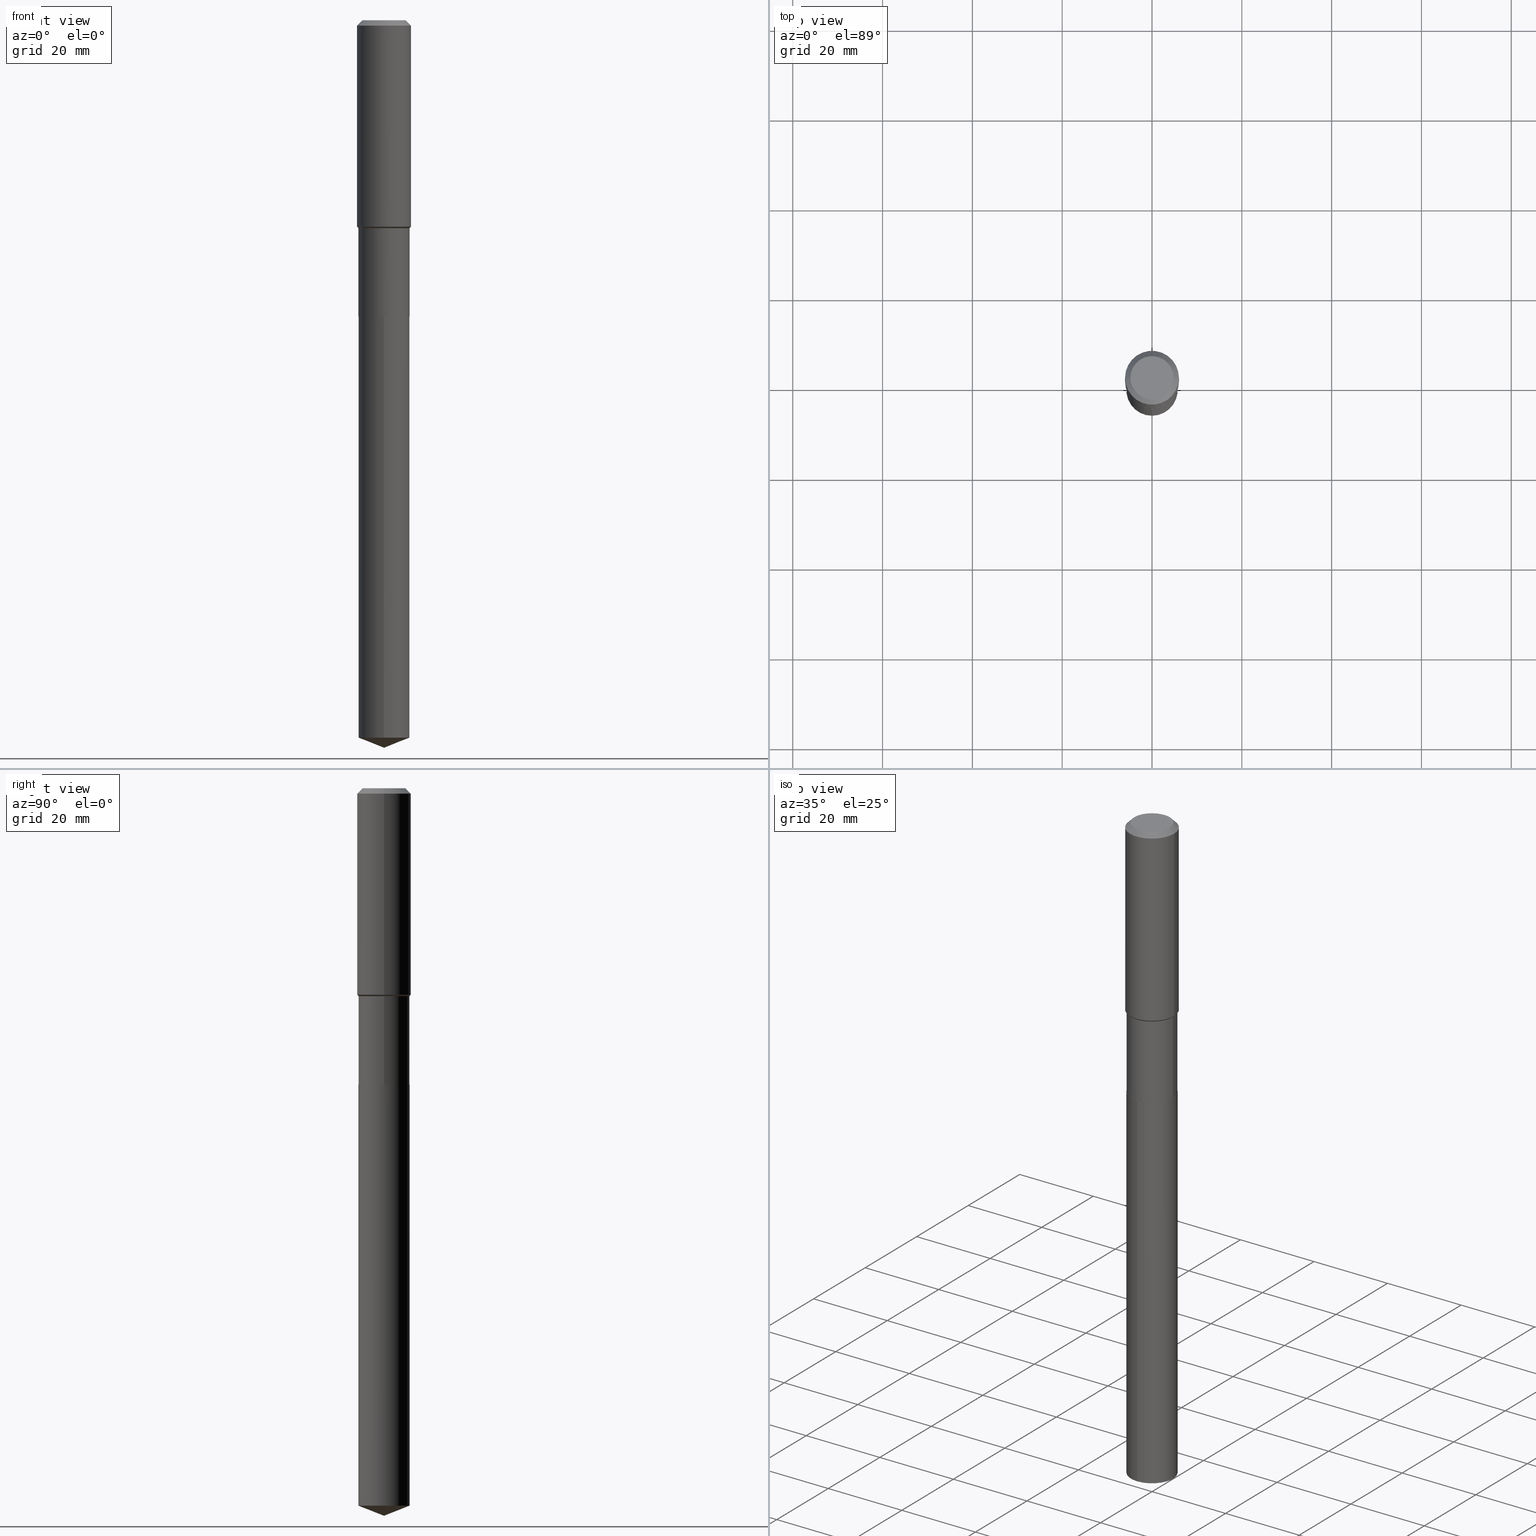
[diagram: canonical four-view strip — front | top / right | iso, engineering-drawing reading convention]
A machine part, canonical four-view strip (front | top / right | iso — engineering-drawing reading convention). The complete STEP part file that produces these views, byte-faithful:
ISO-10303-21;
HEADER;
FILE_DESCRIPTION (( 'STEP AP203' ),
    '1' );
FILE_NAME ('66690.STEP',
    '2024-04-25T03:47:43',
    ( '' ),
    ( '' ),
    'SwSTEP 2.0',
    'SolidWorks 2023',
    '' );
FILE_SCHEMA (( 'CONFIG_CONTROL_DESIGN' ));
ENDSEC;

DATA;
#1 = EDGE_LOOP ( 'NONE', ( #70, #73, #159, #308 ) ) ;
#2 = DIRECTION ( 'NONE',  ( 1.000000000000000000, -6.982962677686266711E-15, 4.876185090822587894E-29 ) ) ;
#3 = ORIENTED_EDGE ( 'NONE', *, *, #23, .F. ) ;
#4 = ORIENTED_EDGE ( 'NONE', *, *, #370, .T. ) ;
#5 = AXIS2_PLACEMENT_3D ( 'NONE', #245, #356, #468 ) ;
#6 = CARTESIAN_POINT ( 'NONE',  ( 6.354306145991461998E-29, -9.072265110850035778E-15, -2.598400000000001597 ) ) ;
#7 = CIRCLE ( 'NONE', #482, 0.2361999999999999933 ) ;
#8 = ORIENTED_EDGE ( 'NONE', *, *, #50, .T. ) ;
#9 = ADVANCED_FACE ( 'NONE', ( #47 ), #354, .F. ) ;
#10 = CARTESIAN_POINT ( 'NONE',  ( 0.000000000000000000, 0.000000000000000000, 0.000000000000000000 ) ) ;
#11 = VERTEX_POINT ( 'NONE', #417 ) ;
#12 = VERTEX_POINT ( 'NONE', #77 ) ;
#13 = DIRECTION ( 'NONE',  ( -2.445468806185136597E-29, 3.491481338843145583E-15, 1.000000000000000000 ) ) ;
#14 = PRODUCT_DEFINITION ( 'UNKNOWN', '', #75, #82 ) ;
#15 = FACE_OUTER_BOUND ( 'NONE', #261, .T. ) ;
#16 = CARTESIAN_POINT ( 'NONE',  ( 1.594457899045728238E-15, 0.2243999999999909123, -2.598400000000001597 ) ) ;
#17 = EDGE_CURVE ( 'NONE', #340, #80, #435, .T. ) ;
#18 = DIRECTION ( 'NONE',  ( 1.000000000000000000, -6.982962677686265922E-15, 0.000000000000000000 ) ) ;
#19 = CARTESIAN_POINT ( 'NONE',  ( 1.559683025661503327E-28, -2.226849818518576806E-14, -6.377900000000001235 ) ) ;
#20 = CARTESIAN_POINT ( 'NONE',  ( 6.354306145991461998E-29, -9.072265110850035778E-15, -2.598400000000001597 ) ) ;
#21 = FACE_OUTER_BOUND ( 'NONE', #218, .T. ) ;
#22 = DIRECTION ( 'NONE',  ( 1.000000000000000000, -6.982962677686266711E-15, 4.876185090822587894E-29 ) ) ;
#23 = EDGE_CURVE ( 'NONE', #12, #447, #277, .T. ) ;
#24 = DIRECTION ( 'NONE',  ( 1.000000000000000000, -6.982962677686266711E-15, 4.876176775795936353E-29 ) ) ;
#25 = CIRCLE ( 'NONE', #426, 0.2244000000000000161 ) ;
#26 = AXIS2_PLACEMENT_3D ( 'NONE', #225, #72, #32 ) ;
#27 = DIRECTION ( 'NONE',  ( -2.445449169258695004E-29, 3.491509460039474509E-15, 1.000000000000000000 ) ) ;
#28 = DIRECTION ( 'NONE',  ( -2.445468806185136597E-29, 3.491481338843145583E-15, 1.000000000000000000 ) ) ;
#29 = ORIENTED_EDGE ( 'NONE', *, *, #443, .T. ) ;
#30 = PERSON_AND_ORGANIZATION_ROLE ( 'design_owner' ) ;
#31 = EDGE_LOOP ( 'NONE', ( #199, #179, #349, #200 ) ) ;
#32 = DIRECTION ( 'NONE',  ( 1.000000000000000000, 0.000000000000000000, 0.000000000000000000 ) ) ;
#33 = CIRCLE ( 'NONE', #485, 0.1889600000000000168 ) ;
#34 =( NAMED_UNIT ( * ) PLANE_ANGLE_UNIT ( ) SI_UNIT ( $, .RADIAN. ) );
#35 = CALENDAR_DATE ( 2024, 24, 4 ) ;
#36 = ORIENTED_EDGE ( 'NONE', *, *, #423, .F. ) ;
#37 = AXIS2_PLACEMENT_3D ( 'NONE', #393, #208, #206 ) ;
#38 = APPLICATION_PROTOCOL_DEFINITION ( 'international standard', 'config_control_design', 1994, #306 ) ;
#39 = CARTESIAN_POINT ( 'NONE',  ( 1.155239464041865331E-30, -1.649375784469511612E-16, -0.04724000000000027483 ) ) ;
#40 = DIRECTION ( 'NONE',  ( 1.000000000000000000, -6.982962677686266711E-15, 0.000000000000000000 ) ) ;
#41 = CC_DESIGN_PERSON_AND_ORGANIZATION_ASSIGNMENT ( #149, #107, ( #14 ) ) ;
#42 = ORIENTED_EDGE ( 'NONE', *, *, #433, .F. ) ;
#43 = CIRCLE ( 'NONE', #104, 0.2238999999999999879 ) ;
#44 = CARTESIAN_POINT ( 'NONE',  ( 6.354306145991460877E-29, -9.072265110850034200E-15, -2.598400000000000709 ) ) ;
#45 = VERTEX_POINT ( 'NONE', #475 ) ;
#46 = DIRECTION ( 'NONE',  ( -2.445468806185136597E-29, 3.491481338843145583E-15, 1.000000000000000000 ) ) ;
#47 = FACE_OUTER_BOUND ( 'NONE', #450, .T. ) ;
#48 = CARTESIAN_POINT ( 'NONE',  ( 1.594457899045818168E-15, 0.2243999999999780059, -6.289506489272009837 ) ) ;
#49 = CARTESIAN_POINT ( 'NONE',  ( 0.1889600000000000168, -1.540873453589747738E-15, 3.855188123725863225E-18 ) ) ;
#50 = EDGE_CURVE ( 'NONE', #148, #191, #94, .T. ) ;
#51 = PLANE ( 'NONE',  #93 ) ;
#52 = VECTOR ( 'NONE', #351, 39.37007874015748854 ) ;
#53 = CIRCLE ( 'NONE', #195, 0.2243999999999999051 ) ;
#54 = CARTESIAN_POINT ( 'NONE',  ( 4.456622352391794524E-29, -6.362875591907751010E-15, -1.822400000000000686 ) ) ;
#55 = AXIS2_PLACEMENT_3D ( 'NONE', #10, #239, #231 ) ;
#56 = LINE ( 'NONE', #130, #62 ) ;
#57 = DIRECTION ( 'NONE',  ( -6.982962677686265133E-15, -1.000000000000000000, 2.434802133390608632E-15 ) ) ;
#58 = DIRECTION ( 'NONE',  ( -6.982962677686265133E-15, -1.000000000000000000, 4.869604266781217263E-15 ) ) ;
#59 = EDGE_CURVE ( 'NONE', #11, #340, #124, .T. ) ;
#60 = DIRECTION ( 'NONE',  ( 0.7071067811865526798, -2.468850131082310309E-15, 0.7071067811865424657 ) ) ;
#61 = DIRECTION ( 'NONE',  ( -2.445468806185136597E-29, 3.491481338843145583E-15, 1.000000000000000000 ) ) ;
#62 = VECTOR ( 'NONE', #282, 39.37007874015748143 ) ;
#63 = ORIENTED_EDGE ( 'NONE', *, *, #352, .F. ) ;
#64 = COORDINATED_UNIVERSAL_TIME_OFFSET ( 5, 0, .BEHIND. ) ;
#65 = ORIENTED_EDGE ( 'NONE', *, *, #50, .F. ) ;
#66 = COORDINATED_UNIVERSAL_TIME_OFFSET ( 5, 0, .BEHIND. ) ;
#67 = ORIENTED_EDGE ( 'NONE', *, *, #121, .F. ) ;
#68 = SHAPE_DEFINITION_REPRESENTATION ( #359, #326 ) ;
#69 = CLOSED_SHELL ( 'NONE', ( #100, #205, #290, #226, #9 ) ) ;
#70 = ORIENTED_EDGE ( 'NONE', *, *, #320, .T. ) ;
#71 = COORDINATED_UNIVERSAL_TIME_OFFSET ( 5, 0, .BEHIND. ) ;
#72 = DIRECTION ( 'NONE',  ( 0.000000000000000000, 0.000000000000000000, 1.000000000000000000 ) ) ;
#73 = ORIENTED_EDGE ( 'NONE', *, *, #135, .T. ) ;
#74 = EDGE_LOOP ( 'NONE', ( #465, #300, #463, #262 ) ) ;
#75 = PRODUCT_DEFINITION_FORMATION_WITH_SPECIFIED_SOURCE ( 'ANY', '', #284, .NOT_KNOWN. ) ;
#76 = FACE_OUTER_BOUND ( 'NONE', #136, .T. ) ;
#77 = CARTESIAN_POINT ( 'NONE',  ( -0.2362000000000002153, -4.643374170244043187E-15, -1.810600000000000653 ) ) ;
#78 = ADVANCED_FACE ( 'NONE', ( #209 ), #168, .T. ) ;
#79 = DIRECTION ( 'NONE',  ( 1.000000000000000000, -6.982962677686266711E-15, 4.876176775795936353E-29 ) ) ;
#80 = VERTEX_POINT ( 'NONE', #126 ) ;
#81 = DIRECTION ( 'NONE',  ( 1.000000000000000000, -6.982962677686269077E-15, 0.000000000000000000 ) ) ;
#82 = DESIGN_CONTEXT ( 'detailed design', #306, 'design' ) ;
#83 = CLOSED_SHELL ( 'NONE', ( #410, #331, #215, #151, #78, #251, #143, #88, #303, #129, #309, #288 ) ) ;
#84 = VECTOR ( 'NONE', #480, 39.37007874015747433 ) ;
#85 = FACE_OUTER_BOUND ( 'NONE', #254, .T. ) ;
#86 = ORIENTED_EDGE ( 'NONE', *, *, #161, .T. ) ;
#87 = LINE ( 'NONE', #345, #388 ) ;
#88 = ADVANCED_FACE ( 'NONE', ( #21 ), #132, .T. ) ;
#89 = CARTESIAN_POINT ( 'NONE',  ( 0.2243999999999999051, -7.929852416780548622E-15, -1.822400000000000686 ) ) ;
#90 = CARTESIAN_POINT ( 'NONE',  ( 1.538071944382707100E-28, -2.195979833615634179E-14, -6.289506489272008949 ) ) ;
#91 = FACE_OUTER_BOUND ( 'NONE', #274, .T. ) ;
#92 = LINE ( 'NONE', #400, #445 ) ;
#93 = AXIS2_PLACEMENT_3D ( 'NONE', #398, #216, #178 ) ;
#94 = LINE ( 'NONE', #430, #367 ) ;
#95 = CARTESIAN_POINT ( 'NONE',  ( 0.2243999999999999329, -1.566976824872797810E-15, 1.094214068488607769E-29 ) ) ;
#96 = DIRECTION ( 'NONE',  ( -2.445468806185136877E-29, 3.491481338843145188E-15, 1.000000000000000000 ) ) ;
#97 = CARTESIAN_POINT ( 'NONE',  ( 4.456622352391794524E-29, -6.362875591907751010E-15, -1.822400000000000686 ) ) ;
#98 = LINE ( 'NONE', #278, #348 ) ;
#99 = AXIS2_PLACEMENT_3D ( 'NONE', #387, #167, #314 ) ;
#100 = ADVANCED_FACE ( 'NONE', ( #283 ), #440, .T. ) ;
#101 = CALENDAR_DATE ( 2024, 24, 4 ) ;
#102 = ORIENTED_EDGE ( 'NONE', *, *, #457, .T. ) ;
#103 = DATE_AND_TIME ( #224, #357 ) ;
#104 = AXIS2_PLACEMENT_3D ( 'NONE', #190, #461, #301 ) ;
#105 = AXIS2_PLACEMENT_3D ( 'NONE', #90, #27, #58 ) ;
#106 = ORIENTED_EDGE ( 'NONE', *, *, #320, .F. ) ;
#107 = PERSON_AND_ORGANIZATION_ROLE ( 'creator' ) ;
#108 = PERSON_AND_ORGANIZATION ( #487, #238 ) ;
#109 = EDGE_LOOP ( 'NONE', ( #296, #272, #299, #144 ) ) ;
#110 = VERTEX_POINT ( 'NONE', #394 ) ;
#111 = FACE_OUTER_BOUND ( 'NONE', #337, .T. ) ;
#112 = DIRECTION ( 'NONE',  ( 6.982962677686265922E-15, 1.000000000000000000, -3.491509460039474509E-15 ) ) ;
#113 = VERTEX_POINT ( 'NONE', #49 ) ;
#114 = SECURITY_CLASSIFICATION ( '', '', #333 ) ;
#115 = VECTOR ( 'NONE', #96, 39.37007874015748143 ) ;
#116 = CARTESIAN_POINT ( 'NONE',  ( 0.000000000000000000, 0.000000000000000000, 0.000000000000000000 ) ) ;
#117 = ORIENTED_EDGE ( 'NONE', *, *, #163, .F. ) ;
#118 = CARTESIAN_POINT ( 'NONE',  ( 6.353083411588368076E-29, -9.070519370180611907E-15, -2.597900000000000542 ) ) ;
#119 = ORIENTED_EDGE ( 'NONE', *, *, #188, .F. ) ;
#120 = DIRECTION ( 'NONE',  ( 2.445468806185136597E-29, -3.491481338843145583E-15, -1.000000000000000000 ) ) ;
#121 = EDGE_CURVE ( 'NONE', #257, #407, #436, .T. ) ;
#122 = AXIS2_PLACEMENT_3D ( 'NONE', #285, #244, #127 ) ;
#123 = CARTESIAN_POINT ( 'NONE',  ( -9.427742298522546243E-47, 1.346031739168365344E-32, 3.855188123715862256E-18 ) ) ;
#124 = LINE ( 'NONE', #89, #459 ) ;
#125 = DIRECTION ( 'NONE',  ( -0.7071067811865453523, 2.468850131082234184E-15, -0.7071067811865496822 ) ) ;
#126 = CARTESIAN_POINT ( 'NONE',  ( 0.2361999999999999933, -1.814313362916447440E-15, -0.04724000000000027483 ) ) ;
#127 = DIRECTION ( 'NONE',  ( -1.000000000000000000, 6.982962677686266711E-15, 0.000000000000000000 ) ) ;
#128 = DIRECTION ( 'NONE',  ( 6.611014441532066589E-15, 0.9304175679820272382, 0.3665012267242905297 ) ) ;
#129 = ADVANCED_FACE ( 'NONE', ( #281 ), #202, .F. ) ;
#130 = CARTESIAN_POINT ( 'NONE',  ( -0.2243999999999999051, -4.768417692862086670E-15, -1.822400000000000686 ) ) ;
#131 = CONICAL_SURFACE ( 'NONE', #409, 0.2238999999999999879, 0.7853981633967311859 ) ;
#132 = CYLINDRICAL_SURFACE ( 'NONE', #155, 0.2362000000000001043 ) ;
#133 = DIRECTION ( 'NONE',  ( -2.445449169258695004E-29, 3.491509460039474509E-15, 1.000000000000000000 ) ) ;
#134 = CARTESIAN_POINT ( 'NONE',  ( -0.2361999999999999933, -1.565004903412818656E-15, -0.04724000000000027483 ) ) ;
#135 = EDGE_CURVE ( 'NONE', #191, #257, #250, .T. ) ;
#136 = EDGE_LOOP ( 'NONE', ( #117, #119 ) ) ;
#137 = EDGE_CURVE ( 'NONE', #447, #80, #265, .T. ) ;
#138 = AXIS2_PLACEMENT_3D ( 'NONE', #232, #385, #40 ) ;
#139 = VERTEX_POINT ( 'NONE', #471 ) ;
#140 = PERSON_AND_ORGANIZATION ( #487, #238 ) ;
#141 = VERTEX_POINT ( 'NONE', #432 ) ;
#142 = APPROVAL_STATUS ( 'not_yet_approved' ) ;
#143 = ADVANCED_FACE ( 'NONE', ( #91 ), #259, .T. ) ;
#144 = ORIENTED_EDGE ( 'NONE', *, *, #59, .F. ) ;
#145 = PERSON_AND_ORGANIZATION ( #487, #238 ) ;
#146 = APPROVAL_PERSON_ORGANIZATION ( #108, #329, #455 ) ;
#147 = ORIENTED_EDGE ( 'NONE', *, *, #170, .T. ) ;
#148 = VERTEX_POINT ( 'NONE', #19 ) ;
#149 = PERSON_AND_ORGANIZATION ( #487, #238 ) ;
#150 = ORIENTED_EDGE ( 'NONE', *, *, #479, .F. ) ;
#151 = ADVANCED_FACE ( 'NONE', ( #171 ), #203, .T. ) ;
#152 = ORIENTED_EDGE ( 'NONE', *, *, #137, .T. ) ;
#153 = DIRECTION ( 'NONE',  ( -2.445449169258695004E-29, 3.491509460039474509E-15, 1.000000000000000000 ) ) ;
#154 = DIRECTION ( 'NONE',  ( 2.445449169258694724E-29, -3.491509460039474509E-15, -1.000000000000000000 ) ) ;
#155 = AXIS2_PLACEMENT_3D ( 'NONE', #392, #175, #399 ) ;
#156 = ORIENTED_EDGE ( 'NONE', *, *, #401, .F. ) ;
#157 = CIRCLE ( 'NONE', #260, 0.2243999999999999051 ) ;
#158 = CYLINDRICAL_SURFACE ( 'NONE', #438, 0.2244000000000000161 ) ;
#159 = ORIENTED_EDGE ( 'NONE', *, *, #371, .F. ) ;
#160 = CARTESIAN_POINT ( 'NONE',  ( -0.2243999999999999606, -6.122239581998517513E-15, -2.597900000000000542 ) ) ;
#161 = EDGE_CURVE ( 'NONE', #141, #197, #25, .T. ) ;
#162 = ORIENTED_EDGE ( 'NONE', *, *, #17, .T. ) ;
#163 = EDGE_CURVE ( 'NONE', #384, #110, #43, .T. ) ;
#164 = FACE_OUTER_BOUND ( 'NONE', #234, .T. ) ;
#165 = DIRECTION ( 'NONE',  ( -2.445449169258695004E-29, 3.491509460039474509E-15, 1.000000000000000000 ) ) ;
#166 = CIRCLE ( 'NONE', #489, 0.2244000000000000161 ) ;
#167 = DIRECTION ( 'NONE',  ( -2.445449169258695004E-29, 3.491509460039474509E-15, 1.000000000000000000 ) ) ;
#168 = CYLINDRICAL_SURFACE ( 'NONE', #476, 0.2243999999999999329 ) ;
#169 = CARTESIAN_POINT ( 'NONE',  ( -0.2243999999999999329, 1.594457899045664340E-15, -1.103809034253200604E-29 ) ) ;
#170 = EDGE_CURVE ( 'NONE', #80, #447, #7, .T. ) ;
#171 = FACE_OUTER_BOUND ( 'NONE', #109, .T. ) ;
#172 = DIRECTION ( 'NONE',  ( 1.000000000000000000, -6.982962677686265922E-15, 0.000000000000000000 ) ) ;
#173 = CARTESIAN_POINT ( 'NONE',  ( 6.354306145991460877E-29, -9.072265110850034200E-15, -2.598400000000000709 ) ) ;
#174 = CARTESIAN_POINT ( 'NONE',  ( 4.427765820478809902E-29, -6.321676112109401159E-15, -1.810600000000000653 ) ) ;
#175 = DIRECTION ( 'NONE',  ( -2.445468806185136597E-29, 3.491481338843145583E-15, 1.000000000000000000 ) ) ;
#176 = CARTESIAN_POINT ( 'NONE',  ( 0.2362000000000002153, -7.971051896578899262E-15, -1.810600000000000653 ) ) ;
#177 = EDGE_CURVE ( 'NONE', #384, #141, #198, .T. ) ;
#178 = DIRECTION ( 'NONE',  ( 1.000000000000000000, -6.982962677686265922E-15, 4.876176775795935793E-29 ) ) ;
#179 = ORIENTED_EDGE ( 'NONE', *, *, #188, .T. ) ;
#180 = PERSON_AND_ORGANIZATION ( #487, #238 ) ;
#181 = CC_DESIGN_SECURITY_CLASSIFICATION ( #114, ( #75 ) ) ;
#182 = AXIS2_PLACEMENT_3D ( 'NONE', #6, #307, #81 ) ;
#183 = ORIENTED_EDGE ( 'NONE', *, *, #449, .F. ) ;
#184 = APPROVAL_DATE_TIME ( #481, #329 ) ;
#185 = APPROVAL ( #142, 'UNSPECIFIED' ) ;
#186 = CC_DESIGN_APPROVAL ( #329, ( #75 ) ) ;
#187 = ORIENTED_EDGE ( 'NONE', *, *, #161, .F. ) ;
#188 = EDGE_CURVE ( 'NONE', #110, #384, #246, .T. ) ;
#189 = EDGE_CURVE ( 'NONE', #110, #197, #87, .T. ) ;
#190 = CARTESIAN_POINT ( 'NONE',  ( 6.354306145991461998E-29, -9.072265110850035778E-15, -2.598400000000001597 ) ) ;
#191 = VERTEX_POINT ( 'NONE', #48 ) ;
#192 = DIRECTION ( 'NONE',  ( 1.000000000000000000, -6.982962677686266711E-15, 0.000000000000000000 ) ) ;
#193 = ORIENTED_EDGE ( 'NONE', *, *, #177, .F. ) ;
#194 = MANIFOLD_SOLID_BREP ( 'Body-Move/Copy2[1]', #69 ) ;
#195 = AXIS2_PLACEMENT_3D ( 'NONE', #431, #61, #18 ) ;
#196 = DIRECTION ( 'NONE',  ( -1.000000000000000000, 6.982962677686266711E-15, 0.000000000000000000 ) ) ;
#197 = VERTEX_POINT ( 'NONE', #160 ) ;
#198 = LINE ( 'NONE', #421, #52 ) ;
#199 = ORIENTED_EDGE ( 'NONE', *, *, #189, .F. ) ;
#200 = ORIENTED_EDGE ( 'NONE', *, *, #276, .F. ) ;
#201 = CARTESIAN_POINT ( 'NONE',  ( 6.354306145991461998E-29, -9.072265110850035778E-15, -2.598400000000001597 ) ) ;
#202 = PLANE ( 'NONE',  #5 ) ;
#203 = CONICAL_SURFACE ( 'NONE', #321, 0.2243999999999999051, 0.7853981633974554954 ) ;
#204 = CIRCLE ( 'NONE', #37, 0.2244000000000000161 ) ;
#205 = ADVANCED_FACE ( 'NONE', ( #85 ), #237, .T. ) ;
#206 = DIRECTION ( 'NONE',  ( -6.982962677686265133E-15, -1.000000000000000000, 2.434802133390608632E-15 ) ) ;
#207 = DIRECTION ( 'NONE',  ( -2.445468806185136597E-29, 3.491481338843145583E-15, 1.000000000000000000 ) ) ;
#208 = DIRECTION ( 'NONE',  ( -2.445449169258695004E-29, 3.491509460039474509E-15, 1.000000000000000000 ) ) ;
#209 = FACE_OUTER_BOUND ( 'NONE', #240, .T. ) ;
#210 = FACE_OUTER_BOUND ( 'NONE', #377, .T. ) ;
#211 = DIRECTION ( 'NONE',  ( -2.445468806185136877E-29, 3.491481338843145188E-15, 1.000000000000000000 ) ) ;
#212 = DIRECTION ( 'NONE',  ( -2.445468806185136597E-29, 3.491481338843145583E-15, 1.000000000000000000 ) ) ;
#213 = AXIS2_PLACEMENT_3D ( 'NONE', #414, #120, #196 ) ;
#214 = LOCAL_TIME ( 23, 47, 43.00000000000000000, #448 ) ;
#215 = ADVANCED_FACE ( 'NONE', ( #271 ), #266, .T. ) ;
#216 = DIRECTION ( 'NONE',  ( -2.438088387897960049E-29, 3.491481338843145188E-15, 1.000000000000000000 ) ) ;
#217 = PERSON_AND_ORGANIZATION ( #487, #238 ) ;
#218 = EDGE_LOOP ( 'NONE', ( #3, #422, #162, #230 ) ) ;
#219 = DATE_TIME_ROLE ( 'classification_date' ) ;
#220 = EDGE_CURVE ( 'NONE', #113, #344, #33, .T. ) ;
#221 = AXIS2_PLACEMENT_3D ( 'NONE', #173, #325, #397 ) ;
#222 = AXIS2_PLACEMENT_3D ( 'NONE', #242, #304, #391 ) ;
#223 = CIRCLE ( 'NONE', #222, 0.2362000000000002153 ) ;
#224 = CALENDAR_DATE ( 2024, 24, 4 ) ;
#225 = CARTESIAN_POINT ( 'NONE',  ( 0.000000000000000000, 0.000000000000000000, 0.000000000000000000 ) ) ;
#226 = ADVANCED_FACE ( 'NONE', ( #467 ), #158, .T. ) ;
#227 =( NAMED_UNIT ( * ) SI_UNIT ( $, .STERADIAN. ) SOLID_ANGLE_UNIT ( ) );
#228 = CONICAL_SURFACE ( 'NONE', #99, 99.94676754583997536, 1.195550537616119513 ) ;
#229 = CARTESIAN_POINT ( 'NONE',  ( 6.354306145991460877E-29, -9.072265110850034200E-15, -2.598400000000000709 ) ) ;
#230 = ORIENTED_EDGE ( 'NONE', *, *, #137, .F. ) ;
#231 = DIRECTION ( 'NONE',  ( 1.000000000000000000, -6.982962677686266711E-15, 4.876176775795935793E-29 ) ) ;
#232 = CARTESIAN_POINT ( 'NONE',  ( 6.353083411588368076E-29, -9.070519370180611907E-15, -2.597900000000000542 ) ) ;
#233 = DIMENSIONAL_EXPONENTS ( 1.000000000000000000, 0.000000000000000000, 0.000000000000000000, 0.000000000000000000, 0.000000000000000000, 0.000000000000000000, 0.000000000000000000 ) ;
#234 = EDGE_LOOP ( 'NONE', ( #183, #372, #298, #269 ) ) ;
#235 = DIRECTION ( 'NONE',  ( -6.982962677686266711E-15, -1.000000000000000000, 3.498627837350004222E-15 ) ) ;
#236 = PRODUCT_RELATED_PRODUCT_CATEGORY ( 'detail', '', ( #284 ) ) ;
#237 = CONICAL_SURFACE ( 'NONE', #416, 99.94676754583997536, 1.195550537616119513 ) ;
#238 = ORGANIZATION ( 'UNSPECIFIED', 'UNSPECIFIED', '' ) ;
#239 = DIRECTION ( 'NONE',  ( -2.445468806185136597E-29, 3.491481338843145583E-15, 1.000000000000000000 ) ) ;
#240 = EDGE_LOOP ( 'NONE', ( #86, #287, #343, #36 ) ) ;
#241 = EDGE_LOOP ( 'NONE', ( #255, #446, #102, #67 ) ) ;
#242 = CARTESIAN_POINT ( 'NONE',  ( 4.427765820478809902E-29, -6.321676112109401159E-15, -1.810600000000000653 ) ) ;
#243 = CARTESIAN_POINT ( 'NONE',  ( 0.000000000000000000, 0.000000000000000000, 0.000000000000000000 ) ) ;
#244 = DIRECTION ( 'NONE',  ( 2.445468806185136597E-29, -3.491481338843145583E-15, -1.000000000000000000 ) ) ;
#245 = CARTESIAN_POINT ( 'NONE',  ( -4.713871149261273121E-47, 6.730158695841826722E-33, 1.927594061857931128E-18 ) ) ;
#246 = CIRCLE ( 'NONE', #182, 0.2238999999999999879 ) ;
#247 = AXIS2_PLACEMENT_3D ( 'NONE', #201, #263, #355 ) ;
#248 = CARTESIAN_POINT ( 'NONE',  ( -9.427742298522546243E-47, 1.346031739168365344E-32, 3.855188123715862256E-18 ) ) ;
#249 = CARTESIAN_POINT ( 'NONE',  ( 6.354306145991460877E-29, -9.072265110850034200E-15, -2.598400000000000709 ) ) ;
#250 = LINE ( 'NONE', #16, #294 ) ;
#251 = ADVANCED_FACE ( 'NONE', ( #164 ), #310, .T. ) ;
#252 = DIRECTION ( 'NONE',  ( -2.445468806185136597E-29, 3.491481338843145583E-15, 1.000000000000000000 ) ) ;
#253 = APPROVAL_PERSON_ORGANIZATION ( #375, #185, #292 ) ;
#254 = EDGE_LOOP ( 'NONE', ( #63, #8, #106 ) ) ;
#255 = ORIENTED_EDGE ( 'NONE', *, *, #135, .F. ) ;
#256 = DATE_AND_TIME ( #101, #214 ) ;
#257 = VERTEX_POINT ( 'NONE', #275 ) ;
#258 =( CONVERSION_BASED_UNIT ( 'INCH', #488 ) LENGTH_UNIT ( ) NAMED_UNIT ( #233 ) );
#259 = CONICAL_SURFACE ( 'NONE', #350, 0.2243999999999999051, 0.7853981633974554954 ) ;
#260 = AXIS2_PLACEMENT_3D ( 'NONE', #97, #28, #172 ) ;
#261 = EDGE_LOOP ( 'NONE', ( #65, #420, #156 ) ) ;
#262 = ORIENTED_EDGE ( 'NONE', *, *, #17, .F. ) ;
#263 = DIRECTION ( 'NONE',  ( -2.445468806185136597E-29, 3.491481338843145583E-15, 1.000000000000000000 ) ) ;
#264 = ORIENTED_EDGE ( 'NONE', *, *, #189, .T. ) ;
#265 = CIRCLE ( 'NONE', #412, 0.2361999999999999933 ) ;
#266 = CYLINDRICAL_SURFACE ( 'NONE', #55, 0.2362000000000001043 ) ;
#267 = EDGE_CURVE ( 'NONE', #340, #12, #223, .T. ) ;
#268 = DIRECTION ( 'NONE',  ( 1.000000000000000000, -6.982962677686265922E-15, 0.000000000000000000 ) ) ;
#269 = ORIENTED_EDGE ( 'NONE', *, *, #338, .F. ) ;
#270 = UNCERTAINTY_MEASURE_WITH_UNIT (LENGTH_MEASURE( 1.000000000000000082E-05 ), #258, 'distance_accuracy_value', 'NONE');
#271 = FACE_OUTER_BOUND ( 'NONE', #74, .T. ) ;
#272 = ORIENTED_EDGE ( 'NONE', *, *, #479, .T. ) ;
#273 = VECTOR ( 'NONE', #316, 39.37007874015748143 ) ;
#274 = EDGE_LOOP ( 'NONE', ( #150, #458, #291, #428 ) ) ;
#275 = CARTESIAN_POINT ( 'NONE',  ( 1.594457899045818957E-15, 0.2243999999999909123, -2.598400000000001597 ) ) ;
#276 = EDGE_CURVE ( 'NONE', #197, #141, #427, .T. ) ;
#277 = LINE ( 'NONE', #473, #115 ) ;
#278 = CARTESIAN_POINT ( 'NONE',  ( 0.2361999999999999933, -1.785387205520586782E-15, -0.04724000000000027483 ) ) ;
#279 = DIRECTION ( 'NONE',  ( 1.000000000000000000, -6.982962677686266711E-15, 0.000000000000000000 ) ) ;
#280 = FACE_OUTER_BOUND ( 'NONE', #418, .T. ) ;
#281 = FACE_OUTER_BOUND ( 'NONE', #324, .T. ) ;
#282 = DIRECTION ( 'NONE',  ( -0.7071067811865526798, 7.493145998870373093E-15, 0.7071067811865424657 ) ) ;
#283 = FACE_OUTER_BOUND ( 'NONE', #1, .T. ) ;
#284 = PRODUCT ( '66690', '66690', '', ( #380 ) ) ;
#285 = CARTESIAN_POINT ( 'NONE',  ( 1.155239464041865331E-30, -1.649375784469511612E-16, -0.04724000000000027483 ) ) ;
#286 = CARTESIAN_POINT ( 'NONE',  ( -1.566976824872734504E-15, -0.2244000000000090922, -2.598400000000000265 ) ) ;
#287 = ORIENTED_EDGE ( 'NONE', *, *, #449, .T. ) ;
#288 = ADVANCED_FACE ( 'NONE', ( #390 ), #302, .T. ) ;
#289 = PERSON_AND_ORGANIZATION_ROLE ( 'classification_officer' ) ;
#290 = ADVANCED_FACE ( 'NONE', ( #15 ), #228, .T. ) ;
#291 = ORIENTED_EDGE ( 'NONE', *, *, #59, .T. ) ;
#292 = APPROVAL_ROLE ( '' ) ;
#293 = PERSON_AND_ORGANIZATION ( #487, #238 ) ;
#294 = VECTOR ( 'NONE', #315, 39.37007874015748143 ) ;
#295 = APPROVAL_PERSON_ORGANIZATION ( #293, #425, #378 ) ;
#296 = ORIENTED_EDGE ( 'NONE', *, *, #442, .T. ) ;
#297 = APPROVAL_STATUS ( 'not_yet_approved' ) ;
#298 = ORIENTED_EDGE ( 'NONE', *, *, #423, .T. ) ;
#299 = ORIENTED_EDGE ( 'NONE', *, *, #267, .F. ) ;
#300 = ORIENTED_EDGE ( 'NONE', *, *, #23, .T. ) ;
#301 = DIRECTION ( 'NONE',  ( 1.000000000000000000, -6.982962677686269077E-15, 0.000000000000000000 ) ) ;
#302 = CONICAL_SURFACE ( 'NONE', #247, 0.2238999999999999879, 0.7853981633967311859 ) ;
#303 = ADVANCED_FACE ( 'NONE', ( #111 ), #312, .T. ) ;
#304 = DIRECTION ( 'NONE',  ( -2.445468806185136597E-29, 3.491481338843145583E-15, 1.000000000000000000 ) ) ;
#305 = ORIENTED_EDGE ( 'NONE', *, *, #163, .T. ) ;
#306 = APPLICATION_CONTEXT ( 'configuration controlled 3d designs of mechanical parts and assemblies' ) ;
#307 = DIRECTION ( 'NONE',  ( -2.445468806185136597E-29, 3.491481338843145583E-15, 1.000000000000000000 ) ) ;
#308 = ORIENTED_EDGE ( 'NONE', *, *, #457, .F. ) ;
#309 = ADVANCED_FACE ( 'NONE', ( #76 ), #51, .F. ) ;
#310 = CYLINDRICAL_SURFACE ( 'NONE', #437, 0.2243999999999999329 ) ;
#311 = DIRECTION ( 'NONE',  ( -2.445468806185136597E-29, 3.491481338843145583E-15, 1.000000000000000000 ) ) ;
#312 = CONICAL_SURFACE ( 'NONE', #213, 0.2361999999999999933, 0.7853981633974452814 ) ;
#313 = EDGE_CURVE ( 'NONE', #12, #340, #381, .T. ) ;
#314 = DIRECTION ( 'NONE',  ( -6.982962677686266711E-15, -1.000000000000000000, 3.498627837350004222E-15 ) ) ;
#315 = DIRECTION ( 'NONE',  ( -2.445449169258695004E-29, 3.491509460039474509E-15, 1.000000000000000000 ) ) ;
#316 = DIRECTION ( 'NONE',  ( -2.445468806185136877E-29, 3.491481338843145188E-15, 1.000000000000000000 ) ) ;
#317 = CARTESIAN_POINT ( 'NONE',  ( 4.456622352391794524E-29, -6.362875591907751010E-15, -1.822400000000000686 ) ) ;
#318 = DIRECTION ( 'NONE',  ( 1.000000000000000000, -6.982962677686269077E-15, 0.000000000000000000 ) ) ;
#319 = CARTESIAN_POINT ( 'NONE',  ( 0.2362000000000001043, -1.649375784469496920E-15, 1.151752954443000508E-29 ) ) ;
#320 = EDGE_CURVE ( 'NONE', #45, #191, #395, .T. ) ;
#321 = AXIS2_PLACEMENT_3D ( 'NONE', #317, #424, #268 ) ;
#322 = AXIS2_PLACEMENT_3D ( 'NONE', #248, #212, #22 ) ;
#323 = CARTESIAN_POINT ( 'NONE',  ( -0.1889600000000000168, 1.401969416799070942E-15, 3.855188123706346622E-18 ) ) ;
#324 = EDGE_LOOP ( 'NONE', ( #29, #405 ) ) ;
#325 = DIRECTION ( 'NONE',  ( -2.445449169258695004E-29, 3.491509460039474509E-15, 1.000000000000000000 ) ) ;
#326 = ADVANCED_BREP_SHAPE_REPRESENTATION ( '66690', ( #194, #364, #26 ), #453 ) ;
#327 = CARTESIAN_POINT ( 'NONE',  ( 1.559683025661503327E-28, -2.226849818518576806E-14, -6.377900000000001235 ) ) ;
#328 = CALENDAR_DATE ( 2024, 24, 4 ) ;
#329 = APPROVAL ( #297, 'UNSPECIFIED' ) ;
#330 = ORIENTED_EDGE ( 'NONE', *, *, #371, .T. ) ;
#331 = ADVANCED_FACE ( 'NONE', ( #210 ), #376, .T. ) ;
#332 = AXIS2_PLACEMENT_3D ( 'NONE', #249, #165, #57 ) ;
#333 = SECURITY_CLASSIFICATION_LEVEL ( 'unclassified' ) ;
#334 = LOCAL_TIME ( 23, 47, 43.00000000000000000, #66 ) ;
#335 = ORIENTED_EDGE ( 'NONE', *, *, #220, .F. ) ;
#336 = APPLICATION_PROTOCOL_DEFINITION ( 'international standard', 'config_control_design', 1994, #415 ) ;
#337 = EDGE_LOOP ( 'NONE', ( #484, #386, #379, #152 ) ) ;
#338 = EDGE_CURVE ( 'NONE', #139, #11, #157, .T. ) ;
#339 = CC_DESIGN_PERSON_AND_ORGANIZATION_ASSIGNMENT ( #180, #406, ( #75 ) ) ;
#340 = VERTEX_POINT ( 'NONE', #176 ) ;
#341 = DATE_AND_TIME ( #35, #483 ) ;
#342 = VECTOR ( 'NONE', #434, 39.37007874015748143 ) ;
#343 = ORIENTED_EDGE ( 'NONE', *, *, #442, .F. ) ;
#344 = VERTEX_POINT ( 'NONE', #323 ) ;
#345 = CARTESIAN_POINT ( 'NONE',  ( -0.2238999999999999879, -7.481359925483171547E-15, -2.598400000000001597 ) ) ;
#346 = CC_DESIGN_DATE_AND_TIME_ASSIGNMENT ( #341, #490, ( #14 ) ) ;
#347 = CARTESIAN_POINT ( 'NONE',  ( -8.068064506756283072E-28, 1.151925772486896208E-13, 32.99217874015747753 ) ) ;
#348 = VECTOR ( 'NONE', #365, 39.37007874015748143 ) ;
#349 = ORIENTED_EDGE ( 'NONE', *, *, #177, .T. ) ;
#350 = AXIS2_PLACEMENT_3D ( 'NONE', #54, #207, #360 ) ;
#351 = DIRECTION ( 'NONE',  ( 0.7071067811860403118, -2.468850131076945266E-15, 0.7071067811870545006 ) ) ;
#352 = EDGE_CURVE ( 'NONE', #148, #45, #478, .T. ) ;
#353 = DIRECTION ( 'NONE',  ( -2.445449169258695004E-29, 3.491509460039474509E-15, 1.000000000000000000 ) ) ;
#354 = PLANE ( 'NONE',  #462 ) ;
#355 = DIRECTION ( 'NONE',  ( 1.000000000000000000, -6.982962677686269077E-15, 0.000000000000000000 ) ) ;
#356 = DIRECTION ( 'NONE',  ( 2.438088387897960049E-29, -3.491481338843145188E-15, -1.000000000000000000 ) ) ;
#357 = LOCAL_TIME ( 23, 47, 43.00000000000000000, #451 ) ;
#358 = DIRECTION ( 'NONE',  ( -2.445468806185136597E-29, 3.491481338843145583E-15, 1.000000000000000000 ) ) ;
#359 = PRODUCT_DEFINITION_SHAPE ( 'NONE', 'NONE',  #14 ) ;
#360 = DIRECTION ( 'NONE',  ( 1.000000000000000000, -6.982962677686265922E-15, 0.000000000000000000 ) ) ;
#361 = DIRECTION ( 'NONE',  ( -6.982962677686265133E-15, -1.000000000000000000, 4.869604266781217263E-15 ) ) ;
#362 = CC_DESIGN_DATE_AND_TIME_ASSIGNMENT ( #256, #219, ( #114 ) ) ;
#363 = CARTESIAN_POINT ( 'NONE',  ( 1.155239464041865331E-30, -1.649375784469511612E-16, -0.04724000000000027483 ) ) ;
#364 = MANIFOLD_SOLID_BREP ( 'Body-Move/Copy2[2]', #83 ) ;
#365 = DIRECTION ( 'NONE',  ( 0.7071067811865453523, -7.319954787623248157E-15, -0.7071067811865496822 ) ) ;
#366 = DIRECTION ( 'NONE',  ( -2.445468806185136597E-29, 3.491481338843145583E-15, 1.000000000000000000 ) ) ;
#367 = VECTOR ( 'NONE', #128, 39.37007874015748143 ) ;
#368 = LOCAL_TIME ( 23, 47, 43.00000000000000000, #71 ) ;
#369 = DIRECTION ( 'NONE',  ( 1.000000000000000000, -6.982962677686266711E-15, 0.000000000000000000 ) ) ;
#370 = EDGE_CURVE ( 'NONE', #113, #80, #98, .T. ) ;
#371 = EDGE_CURVE ( 'NONE', #407, #257, #204, .T. ) ;
#372 = ORIENTED_EDGE ( 'NONE', *, *, #276, .T. ) ;
#373 = PERSON_AND_ORGANIZATION_ROLE ( 'creator' ) ;
#374 = VECTOR ( 'NONE', #211, 39.37007874015748143 ) ;
#375 = PERSON_AND_ORGANIZATION ( #487, #238 ) ;
#376 = CONICAL_SURFACE ( 'NONE', #122, 0.2361999999999999933, 0.7853981633974452814 ) ;
#377 = EDGE_LOOP ( 'NONE', ( #335, #4, #147, #42 ) ) ;
#378 = APPROVAL_ROLE ( '' ) ;
#379 = ORIENTED_EDGE ( 'NONE', *, *, #433, .T. ) ;
#380 = MECHANICAL_CONTEXT ( 'NONE', #415, 'mechanical' ) ;
#381 = CIRCLE ( 'NONE', #460, 0.2362000000000002153 ) ;
#382 = CC_DESIGN_PERSON_AND_ORGANIZATION_ASSIGNMENT ( #140, #289, ( #114 ) ) ;
#383 = DIRECTION ( 'NONE',  ( -2.445468806185136597E-29, 3.491481338843145583E-15, 1.000000000000000000 ) ) ;
#384 = VERTEX_POINT ( 'NONE', #472 ) ;
#385 = DIRECTION ( 'NONE',  ( -2.445468806185136597E-29, 3.491481338843145583E-15, 1.000000000000000000 ) ) ;
#386 = ORIENTED_EDGE ( 'NONE', *, *, #443, .F. ) ;
#387 = CARTESIAN_POINT ( 'NONE',  ( -8.068064506756283072E-28, 1.151925772486896208E-13, 32.99217874015747753 ) ) ;
#388 = VECTOR ( 'NONE', #466, 39.37007874015748854 ) ;
#389 = VECTOR ( 'NONE', #444, 39.37007874015748143 ) ;
#390 = FACE_OUTER_BOUND ( 'NONE', #31, .T. ) ;
#391 = DIRECTION ( 'NONE',  ( 1.000000000000000000, -6.982962677686266711E-15, 0.000000000000000000 ) ) ;
#392 = CARTESIAN_POINT ( 'NONE',  ( 0.000000000000000000, 0.000000000000000000, 0.000000000000000000 ) ) ;
#393 = CARTESIAN_POINT ( 'NONE',  ( 6.354306145991460877E-29, -9.072265110850034200E-15, -2.598400000000000709 ) ) ;
#394 = CARTESIAN_POINT ( 'NONE',  ( -0.2238999999999999879, -7.478710698309059557E-15, -2.598400000000001597 ) ) ;
#395 = CIRCLE ( 'NONE', #105, 0.2244000000000000161 ) ;
#396 = LINE ( 'NONE', #286, #389 ) ;
#397 = DIRECTION ( 'NONE',  ( -6.982962677686265133E-15, -1.000000000000000000, 2.434802133390608632E-15 ) ) ;
#398 = CARTESIAN_POINT ( 'NONE',  ( 1.926606415564330206E-29, -1.541298313383996512E-14, -2.598400000000001597 ) ) ;
#399 = DIRECTION ( 'NONE',  ( 1.000000000000000000, -6.982962677686266711E-15, 4.876176775795935793E-29 ) ) ;
#400 = CARTESIAN_POINT ( 'NONE',  ( -0.2361999999999999933, 1.484438206022545019E-15, -0.04724000000000027483 ) ) ;
#401 = EDGE_CURVE ( 'NONE', #191, #45, #166, .T. ) ;
#402 = CC_DESIGN_APPROVAL ( #425, ( #14 ) ) ;
#403 =( LENGTH_UNIT ( ) NAMED_UNIT ( * ) SI_UNIT ( $, .METRE. ) );
#404 = APPROVAL_STATUS ( 'not_yet_approved' ) ;
#405 = ORIENTED_EDGE ( 'NONE', *, *, #220, .T. ) ;
#406 = PERSON_AND_ORGANIZATION_ROLE ( 'design_supplier' ) ;
#407 = VERTEX_POINT ( 'NONE', #441 ) ;
#408 = APPROVAL_DATE_TIME ( #103, #185 ) ;
#409 = AXIS2_PLACEMENT_3D ( 'NONE', #20, #252, #318 ) ;
#410 = ADVANCED_FACE ( 'NONE', ( #280 ), #131, .T. ) ;
#411 = CALENDAR_DATE ( 2024, 24, 4 ) ;
#412 = AXIS2_PLACEMENT_3D ( 'NONE', #363, #311, #279 ) ;
#413 = CC_DESIGN_APPROVAL ( #185, ( #114 ) ) ;
#414 = CARTESIAN_POINT ( 'NONE',  ( 1.155239464041865331E-30, -1.649375784469511612E-16, -0.04724000000000027483 ) ) ;
#415 = APPLICATION_CONTEXT ( 'configuration controlled 3d designs of mechanical parts and assemblies' ) ;
#416 = AXIS2_PLACEMENT_3D ( 'NONE', #347, #353, #235 ) ;
#417 = CARTESIAN_POINT ( 'NONE',  ( 0.2243999999999999051, -7.929852416780548622E-15, -1.822400000000000686 ) ) ;
#418 = EDGE_LOOP ( 'NONE', ( #305, #264, #187, #193 ) ) ;
#419 = DIRECTION ( 'NONE',  ( -2.445468806185136597E-29, 3.491481338843145583E-15, 1.000000000000000000 ) ) ;
#420 = ORIENTED_EDGE ( 'NONE', *, *, #352, .T. ) ;
#421 = CARTESIAN_POINT ( 'NONE',  ( 0.2238999999999999879, -1.063575045438399117E-14, -2.598400000000001597 ) ) ;
#422 = ORIENTED_EDGE ( 'NONE', *, *, #313, .T. ) ;
#423 = EDGE_CURVE ( 'NONE', #141, #11, #439, .T. ) ;
#424 = DIRECTION ( 'NONE',  ( -2.445468806185136597E-29, 3.491481338843145583E-15, 1.000000000000000000 ) ) ;
#425 = APPROVAL ( #404, 'UNSPECIFIED' ) ;
#426 = AXIS2_PLACEMENT_3D ( 'NONE', #118, #383, #429 ) ;
#427 = CIRCLE ( 'NONE', #138, 0.2244000000000000161 ) ;
#428 = ORIENTED_EDGE ( 'NONE', *, *, #313, .F. ) ;
#429 = DIRECTION ( 'NONE',  ( 1.000000000000000000, -6.982962677686266711E-15, 0.000000000000000000 ) ) ;
#430 = CARTESIAN_POINT ( 'NONE',  ( 1.559693320064520861E-28, -2.226835204495268597E-14, -6.377900000000001235 ) ) ;
#431 = CARTESIAN_POINT ( 'NONE',  ( 4.456622352391794524E-29, -6.362875591907751010E-15, -1.822400000000000686 ) ) ;
#432 = CARTESIAN_POINT ( 'NONE',  ( 0.2244000000000000161, -1.063749619505341031E-14, -2.597900000000000542 ) ) ;
#433 = EDGE_CURVE ( 'NONE', #344, #447, #92, .T. ) ;
#434 = DIRECTION ( 'NONE',  ( -2.445468806185136877E-29, 3.491481338843145188E-15, 1.000000000000000000 ) ) ;
#435 = LINE ( 'NONE', #319, #374 ) ;
#436 = CIRCLE ( 'NONE', #332, 0.2244000000000000161 ) ;
#437 = AXIS2_PLACEMENT_3D ( 'NONE', #116, #419, #79 ) ;
#438 = AXIS2_PLACEMENT_3D ( 'NONE', #44, #153, #464 ) ;
#439 = LINE ( 'NONE', #95, #342 ) ;
#440 = CYLINDRICAL_SURFACE ( 'NONE', #221, 0.2244000000000000161 ) ;
#441 = CARTESIAN_POINT ( 'NONE',  ( -1.566976824872734504E-15, -0.2244000000000090922, -2.598400000000000265 ) ) ;
#442 = EDGE_CURVE ( 'NONE', #11, #139, #53, .T. ) ;
#443 = EDGE_CURVE ( 'NONE', #344, #113, #477, .T. ) ;
#444 = DIRECTION ( 'NONE',  ( -2.445449169258695004E-29, 3.491509460039474509E-15, 1.000000000000000000 ) ) ;
#445 = VECTOR ( 'NONE', #125, 39.37007874015748143 ) ;
#446 = ORIENTED_EDGE ( 'NONE', *, *, #401, .T. ) ;
#447 = VERTEX_POINT ( 'NONE', #134 ) ;
#448 = COORDINATED_UNIVERSAL_TIME_OFFSET ( 5, 0, .BEHIND. ) ;
#449 = EDGE_CURVE ( 'NONE', #197, #139, #474, .T. ) ;
#450 = EDGE_LOOP ( 'NONE', ( #330, #454 ) ) ;
#451 = COORDINATED_UNIVERSAL_TIME_OFFSET ( 5, 0, .BEHIND. ) ;
#452 = APPROVAL_DATE_TIME ( #486, #425 ) ;
#453 =( GEOMETRIC_REPRESENTATION_CONTEXT ( 3 ) GLOBAL_UNCERTAINTY_ASSIGNED_CONTEXT ( ( #270 ) ) GLOBAL_UNIT_ASSIGNED_CONTEXT ( ( #258, #34, #227 ) ) REPRESENTATION_CONTEXT ( 'NONE', 'WORKASPACE' ) );
#454 = ORIENTED_EDGE ( 'NONE', *, *, #121, .T. ) ;
#455 = APPROVAL_ROLE ( '' ) ;
#456 = CC_DESIGN_PERSON_AND_ORGANIZATION_ASSIGNMENT ( #145, #30, ( #284 ) ) ;
#457 = EDGE_CURVE ( 'NONE', #45, #407, #396, .T. ) ;
#458 = ORIENTED_EDGE ( 'NONE', *, *, #338, .T. ) ;
#459 = VECTOR ( 'NONE', #60, 39.37007874015748143 ) ;
#460 = AXIS2_PLACEMENT_3D ( 'NONE', #174, #358, #369 ) ;
#461 = DIRECTION ( 'NONE',  ( -2.445468806185136597E-29, 3.491481338843145583E-15, 1.000000000000000000 ) ) ;
#462 = AXIS2_PLACEMENT_3D ( 'NONE', #229, #154, #112 ) ;
#463 = ORIENTED_EDGE ( 'NONE', *, *, #170, .F. ) ;
#464 = DIRECTION ( 'NONE',  ( -6.982962677686265133E-15, -1.000000000000000000, 2.434802133390608632E-15 ) ) ;
#465 = ORIENTED_EDGE ( 'NONE', *, *, #267, .T. ) ;
#466 = DIRECTION ( 'NONE',  ( -0.7071067811860403118, 7.493145998868519270E-15, 0.7071067811870545006 ) ) ;
#467 = FACE_OUTER_BOUND ( 'NONE', #241, .T. ) ;
#468 = DIRECTION ( 'NONE',  ( -1.000000000000000000, 6.982962677686265922E-15, -4.876176775795935793E-29 ) ) ;
#469 = CARTESIAN_POINT ( 'NONE',  ( 1.538071944382707100E-28, -2.195979833615634179E-14, -6.289506489272008949 ) ) ;
#470 = CC_DESIGN_PERSON_AND_ORGANIZATION_ASSIGNMENT ( #217, #373, ( #75 ) ) ;
#471 = CARTESIAN_POINT ( 'NONE',  ( -0.2243999999999999051, -6.122239581998517513E-15, -1.822400000000000686 ) ) ;
#472 = CARTESIAN_POINT ( 'NONE',  ( 0.2238999999999999879, -1.063575045438399117E-14, -2.598400000000001597 ) ) ;
#473 = CARTESIAN_POINT ( 'NONE',  ( -0.2362000000000001043, 1.678301941865357380E-15, -1.161852468318209317E-29 ) ) ;
#474 = LINE ( 'NONE', #169, #273 ) ;
#475 = CARTESIAN_POINT ( 'NONE',  ( -1.566976824872643982E-15, -0.2244000000000218875, -6.289506489272008061 ) ) ;
#476 = AXIS2_PLACEMENT_3D ( 'NONE', #243, #366, #24 ) ;
#477 = CIRCLE ( 'NONE', #322, 0.1889600000000000168 ) ;
#478 = LINE ( 'NONE', #327, #84 ) ;
#479 = EDGE_CURVE ( 'NONE', #139, #12, #56, .T. ) ;
#480 = DIRECTION ( 'NONE',  ( -6.497071151882120625E-15, -0.9304175679820246847, 0.3665012267242971356 ) ) ;
#481 = DATE_AND_TIME ( #411, #334 ) ;
#482 = AXIS2_PLACEMENT_3D ( 'NONE', #39, #46, #192 ) ;
#483 = LOCAL_TIME ( 23, 47, 43.00000000000000000, #64 ) ;
#484 = ORIENTED_EDGE ( 'NONE', *, *, #370, .F. ) ;
#485 = AXIS2_PLACEMENT_3D ( 'NONE', #123, #13, #2 ) ;
#486 = DATE_AND_TIME ( #328, #368 ) ;
#487 = PERSON ( 'UNSPECIFIED', 'UNSPECIFIED', 'UNSPECIFIED', ('UNSPECIFIED'), ('UNSPECIFIED'), ('UNSPECIFIED') ) ;
#488 = LENGTH_MEASURE_WITH_UNIT ( LENGTH_MEASURE( 0.02539999999999999897 ), #403 );
#489 = AXIS2_PLACEMENT_3D ( 'NONE', #469, #133, #361 ) ;
#490 = DATE_TIME_ROLE ( 'creation_date' ) ;
ENDSEC;
END-ISO-10303-21;
